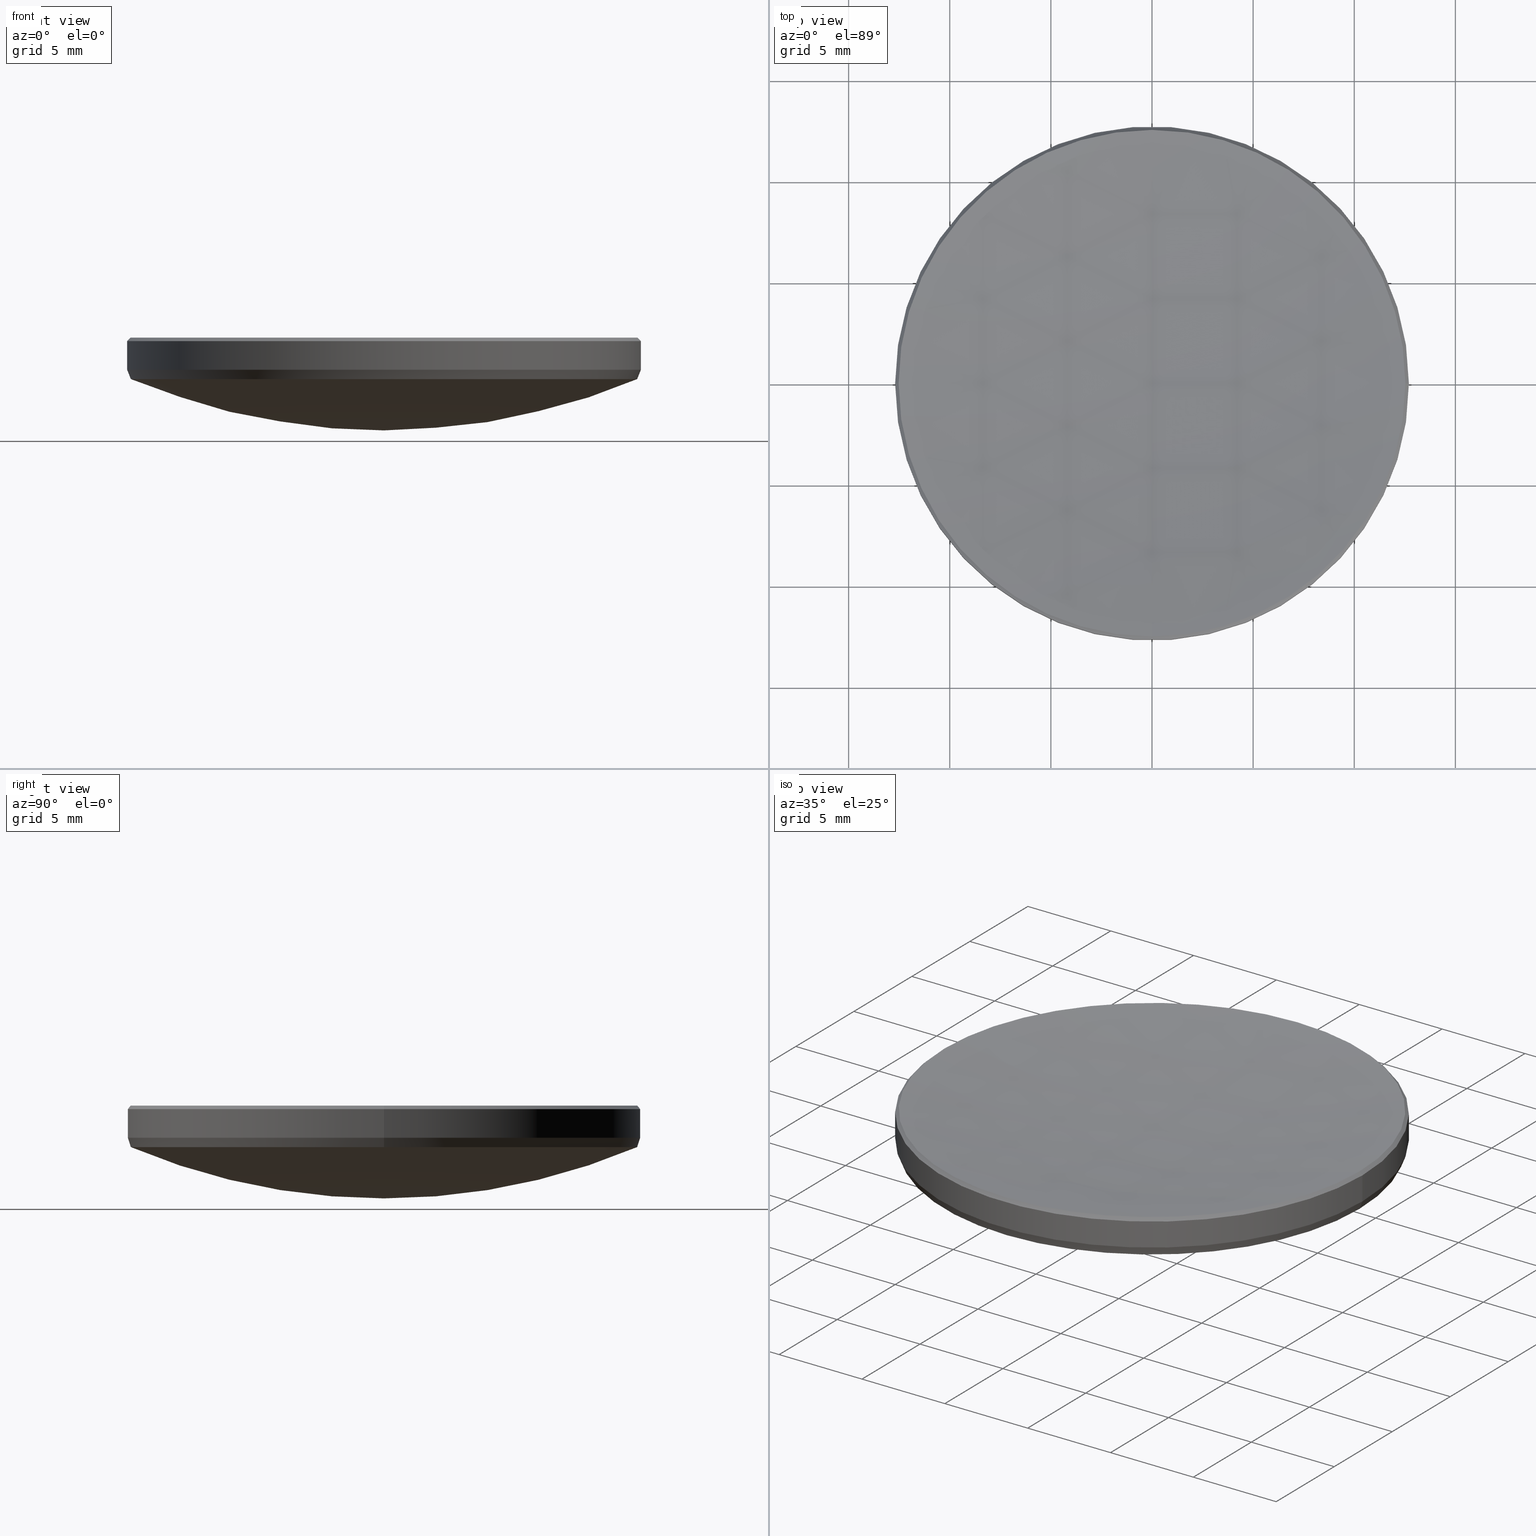
[diagram: canonical four-view strip — front | top / right | iso, engineering-drawing reading convention]
A machine part, canonical four-view strip (front | top / right | iso — engineering-drawing reading convention). The complete STEP part file that produces these views, byte-faithful:
ISO-10303-21;
HEADER;
FILE_DESCRIPTION (( 'STEP AP214' ),
    '1' );
FILE_NAME ('GLM1-025B-100-NIR.STEP',
    '2024-08-09T01:59:13',
    ( 'Windows User' ),
    ( 'P R C' ),
    'SwSTEP 2.0',
    'SolidWorks 2022',
    '' );
FILE_SCHEMA (( 'AUTOMOTIVE_DESIGN' ));
ENDSEC;

DATA;
#1 = AXIS2_PLACEMENT_3D ( 'NONE', #20, #72, #119 ) ;
#2 = ORIENTED_EDGE ( 'NONE', *, *, #304, .T. ) ;
#3 = FACE_OUTER_BOUND ( 'NONE', #309, .T. ) ;
#4 = AXIS2_PLACEMENT_3D ( 'NONE', #67, #183, #42 ) ;
#5 = EDGE_CURVE ( 'NONE', #200, #192, #256, .T. ) ;
#6 =( NAMED_UNIT ( * ) SI_UNIT ( $, .STERADIAN. ) SOLID_ANGLE_UNIT ( ) );
#7 = DIRECTION ( 'NONE',  ( 0.000000000000000000, 0.000000000000000000, -1.000000000000000000 ) ) ;
#8 = CARTESIAN_POINT ( 'NONE',  ( 0.000000000000000000, 0.000000000000000000, 33.52438991749025377 ) ) ;
#9 = AXIS2_PLACEMENT_3D ( 'NONE', #288, #7, #315 ) ;
#10 = FACE_OUTER_BOUND ( 'NONE', #329, .T. ) ;
#11 = AXIS2_PLACEMENT_3D ( 'NONE', #150, #84, #267 ) ;
#12 = DIRECTION ( 'NONE',  ( -1.000000000000000000, 0.000000000000000000, 0.000000000000000000 ) ) ;
#13 = EDGE_CURVE ( 'NONE', #141, #225, #146, .T. ) ;
#14 = PRODUCT ( 'GLM1-025B-100-NIR', 'GLM1-025B-100-NIR', '', ( #249 ) ) ;
#15 = CARTESIAN_POINT ( 'NONE',  ( 0.000000000000000000, 0.000000000000000000, 5.973125799162120941 ) ) ;
#16 = FACE_OUTER_BOUND ( 'NONE', #78, .T. ) ;
#17 = DIRECTION ( 'NONE',  ( 0.000000000000000000, 0.000000000000000000, -1.000000000000000000 ) ) ;
#18 = APPLICATION_CONTEXT ( 'automotive_design' ) ;
#19 = DIRECTION ( 'NONE',  ( -1.000000000000000000, 0.000000000000000000, 0.000000000000000000 ) ) ;
#20 = CARTESIAN_POINT ( 'NONE',  ( 0.000000000000000000, 0.000000000000000000, 0.000000000000000000 ) ) ;
#21 = DIRECTION ( 'NONE',  ( 1.000000000000000000, 0.000000000000000000, 0.000000000000000000 ) ) ;
#22 = CONICAL_SURFACE ( 'NONE', #132, 12.69999999999999929, 0.3791711273704264085 ) ;
#23 = STYLED_ITEM ( 'NONE', ( #173 ), #313 ) ;
#24 = EDGE_CURVE ( 'NONE', #330, #98, #56, .T. ) ;
#25 = VERTEX_POINT ( 'NONE', #260 ) ;
#26 = ORIENTED_EDGE ( 'NONE', *, *, #286, .F. ) ;
#27 = ORIENTED_EDGE ( 'NONE', *, *, #207, .F. ) ;
#28 = CIRCLE ( 'NONE', #197, 12.52687420083785419 ) ;
#29 = PRODUCT_DEFINITION_CONTEXT ( 'detailed design', #298, 'design' ) ;
#30 = ORIENTED_EDGE ( 'NONE', *, *, #275, .T. ) ;
#31 = ORIENTED_EDGE ( 'NONE', *, *, #24, .T. ) ;
#32 = DIRECTION ( 'NONE',  ( -1.000000000000000000, 0.000000000000000000, 0.000000000000000000 ) ) ;
#33 = ADVANCED_BREP_SHAPE_REPRESENTATION ( 'GLM1-025B-100-NIR', ( #313, #1 ), #209 ) ;
#34 = PRODUCT_DEFINITION ( 'δ֪', '', #151, #29 ) ;
#35 = PRODUCT_DEFINITION_SHAPE ( 'NONE', 'NONE',  #34 ) ;
#36 = FACE_OUTER_BOUND ( 'NONE', #147, .T. ) ;
#37 = DIRECTION ( 'NONE',  ( -1.224646799147353207E-16, -1.000000000000000000, 0.000000000000000000 ) ) ;
#38 = DIRECTION ( 'NONE',  ( -0.000000000000000000, -0.000000000000000000, 1.000000000000000000 ) ) ;
#39 = CARTESIAN_POINT ( 'NONE',  ( 0.000000000000000000, 0.000000000000000000, 4.382064373895533826 ) ) ;
#40 = DIRECTION ( 'NONE',  ( 0.000000000000000000, 0.000000000000000000, -1.000000000000000000 ) ) ;
#41 = CONICAL_SURFACE ( 'NONE', #220, 12.69999999999999929, 0.3791711273704264085 ) ;
#42 = DIRECTION ( 'NONE',  ( 1.000000000000000000, 0.000000000000000000, 0.000000000000000000 ) ) ;
#43 = CARTESIAN_POINT ( 'NONE',  ( 0.000000000000000000, 0.000000000000000000, 5.973125799162120941 ) ) ;
#44 = CARTESIAN_POINT ( 'NONE',  ( -12.69999999999999929, 0.000000000000000000, 10.00000000000000000 ) ) ;
#45 = DIRECTION ( 'NONE',  ( -0.000000000000000000, -0.000000000000000000, -1.000000000000000000 ) ) ;
#46 = DIRECTION ( 'NONE',  ( 1.000000000000000000, 0.000000000000000000, 0.000000000000000000 ) ) ;
#47 = DIRECTION ( 'NONE',  ( -0.000000000000000000, -0.000000000000000000, -1.000000000000000000 ) ) ;
#48 = AXIS2_PLACEMENT_3D ( 'NONE', #295, #292, #184 ) ;
#49 = ORIENTED_EDGE ( 'NONE', *, *, #293, .F. ) ;
#50 = SURFACE_SIDE_STYLE ('',( #114 ) ) ;
#51 = ORIENTED_EDGE ( 'NONE', *, *, #286, .T. ) ;
#52 = ADVANCED_FACE ( 'NONE', ( #104 ), #265, .T. ) ;
#53 = ORIENTED_EDGE ( 'NONE', *, *, #93, .T. ) ;
#54 = CIRCLE ( 'NONE', #235, 12.51660009051966682 ) ;
#55 = ORIENTED_EDGE ( 'NONE', *, *, #238, .T. ) ;
#56 = CIRCLE ( 'NONE', #296, 32.14000000000000057 ) ;
#57 = CARTESIAN_POINT ( 'NONE',  ( 0.000000000000000000, 0.000000000000000000, 33.52438991749025377 ) ) ;
#58 = ADVANCED_FACE ( 'NONE', ( #289 ), #22, .T. ) ;
#59 = CARTESIAN_POINT ( 'NONE',  ( 0.000000000000000000, 0.000000000000000000, 87.24335603604764344 ) ) ;
#60 = CARTESIAN_POINT ( 'NONE',  ( 12.69999999999999929, 1.555301434917138433E-15, 5.799999999999999822 ) ) ;
#61 = DIRECTION ( 'NONE',  ( -0.000000000000000000, -0.000000000000000000, -1.000000000000000000 ) ) ;
#62 = ADVANCED_FACE ( 'NONE', ( #36 ), #261, .T. ) ;
#63 = SURFACE_SIDE_STYLE ('',( #277 ) ) ;
#64 = CARTESIAN_POINT ( 'NONE',  ( 0.000000000000000000, 12.51660009051965972, 3.921783238787048820 ) ) ;
#65 = LINE ( 'NONE', #160, #170 ) ;
#66 = EDGE_CURVE ( 'NONE', #330, #200, #324, .T. ) ;
#67 = CARTESIAN_POINT ( 'NONE',  ( 0.000000000000000000, 0.000000000000000000, 5.799999999999999822 ) ) ;
#68 = CARTESIAN_POINT ( 'NONE',  ( 0.000000000000000000, 0.000000000000000000, 4.382064373895533826 ) ) ;
#69 = AXIS2_PLACEMENT_3D ( 'NONE', #236, #61, #12 ) ;
#70 = CARTESIAN_POINT ( 'NONE',  ( 12.69999999999999929, 1.555301434917138433E-15, 10.00000000000000000 ) ) ;
#71 = CARTESIAN_POINT ( 'NONE',  ( 12.69999999999999929, 1.555301434917138433E-15, 4.382064373895533826 ) ) ;
#72 = DIRECTION ( 'NONE',  ( 0.000000000000000000, 0.000000000000000000, 1.000000000000000000 ) ) ;
#73 = VERTEX_POINT ( 'NONE', #148 ) ;
#74 = ADVANCED_FACE ( 'NONE', ( #10 ), #82, .T. ) ;
#75 = ORIENTED_EDGE ( 'NONE', *, *, #24, .F. ) ;
#76 = ORIENTED_EDGE ( 'NONE', *, *, #66, .F. ) ;
#77 =( GEOMETRIC_REPRESENTATION_CONTEXT ( 3 ) GLOBAL_UNCERTAINTY_ASSIGNED_CONTEXT ( ( #187 ) ) GLOBAL_UNIT_ASSIGNED_CONTEXT ( ( #201, #264, #6 ) ) REPRESENTATION_CONTEXT ( 'NONE', 'WORKASPACE' ) );
#78 = EDGE_LOOP ( 'NONE', ( #122, #96, #281, #317, #252 ) ) ;
#79 = AXIS2_PLACEMENT_3D ( 'NONE', #95, #276, #273 ) ;
#80 = CIRCLE ( 'NONE', #294, 12.52687420083785419 ) ;
#81 = EDGE_LOOP ( 'NONE', ( #287, #262, #121, #30 ) ) ;
#82 = SPHERICAL_SURFACE ( 'NONE', #253, 32.14000000000000057 ) ;
#83 = CARTESIAN_POINT ( 'NONE',  ( 12.51660009051966860, 0.000000000000000000, 3.921783238787050596 ) ) ;
#84 = DIRECTION ( 'NONE',  ( -0.000000000000000000, -0.000000000000000000, 1.000000000000000000 ) ) ;
#85 = CARTESIAN_POINT ( 'NONE',  ( 0.000000000000000000, 0.000000000000000000, 33.52438991749025377 ) ) ;
#86 = CARTESIAN_POINT ( 'NONE',  ( 0.000000000000000000, 0.000000000000000000, 33.52438991749025377 ) ) ;
#87 = EDGE_CURVE ( 'NONE', #73, #25, #28, .T. ) ;
#88 = DIRECTION ( 'NONE',  ( 0.000000000000000000, 0.000000000000000000, -1.000000000000000000 ) ) ;
#89 = DIRECTION ( 'NONE',  ( -0.000000000000000000, -0.000000000000000000, 1.000000000000000000 ) ) ;
#90 = LINE ( 'NONE', #70, #94 ) ;
#91 = AXIS2_PLACEMENT_3D ( 'NONE', #57, #131, #233 ) ;
#92 = CARTESIAN_POINT ( 'NONE',  ( -1.534099639337759046E-15, -12.52687420083781511, 5.973125799162120941 ) ) ;
#93 = EDGE_CURVE ( 'NONE', #192, #98, #106, .T. ) ;
#94 = VECTOR ( 'NONE', #47, 1000.000000000000000 ) ;
#95 = CARTESIAN_POINT ( 'NONE',  ( 0.000000000000000000, 0.000000000000000000, 4.382064373895533826 ) ) ;
#96 = ORIENTED_EDGE ( 'NONE', *, *, #182, .T. ) ;
#97 = ORIENTED_EDGE ( 'NONE', *, *, #304, .F. ) ;
#98 = VERTEX_POINT ( 'NONE', #64 ) ;
#99 = ORIENTED_EDGE ( 'NONE', *, *, #331, .F. ) ;
#100 = CIRCLE ( 'NONE', #291, 82.22999999999998977 ) ;
#101 = ORIENTED_EDGE ( 'NONE', *, *, #13, .F. ) ;
#102 = AXIS2_PLACEMENT_3D ( 'NONE', #271, #299, #46 ) ;
#103 = DIRECTION ( 'NONE',  ( 0.000000000000000000, 1.000000000000000000, 0.000000000000000000 ) ) ;
#104 = FACE_OUTER_BOUND ( 'NONE', #194, .T. ) ;
#105 = DIRECTION ( 'NONE',  ( 0.000000000000000000, 1.000000000000000000, 0.000000000000000000 ) ) ;
#106 = CIRCLE ( 'NONE', #283, 12.51660009051966682 ) ;
#107 = DIRECTION ( 'NONE',  ( 0.000000000000000000, 1.000000000000000000, 0.000000000000000000 ) ) ;
#108 = AXIS2_PLACEMENT_3D ( 'NONE', #149, #109, #208 ) ;
#109 = DIRECTION ( 'NONE',  ( 0.000000000000000000, 0.000000000000000000, -1.000000000000000000 ) ) ;
#110 = DIRECTION ( 'NONE',  ( -0.000000000000000000, -0.000000000000000000, 1.000000000000000000 ) ) ;
#111 = ADVANCED_FACE ( 'NONE', ( #3 ), #128, .F. ) ;
#112 = CARTESIAN_POINT ( 'NONE',  ( 0.000000000000000000, 0.000000000000000000, 5.973125799162135152 ) ) ;
#113 = DIRECTION ( 'NONE',  ( 0.000000000000000000, 0.000000000000000000, -1.000000000000000000 ) ) ;
#114 = SURFACE_STYLE_FILL_AREA ( #323 ) ;
#115 = DIRECTION ( 'NONE',  ( -1.000000000000000000, 0.000000000000000000, 0.000000000000000000 ) ) ;
#116 = AXIS2_PLACEMENT_3D ( 'NONE', #180, #113, #135 ) ;
#117 = FACE_OUTER_BOUND ( 'NONE', #224, .T. ) ;
#118 = CIRCLE ( 'NONE', #4, 12.69999999999999929 ) ;
#119 = DIRECTION ( 'NONE',  ( 1.000000000000000000, 0.000000000000000000, 0.000000000000000000 ) ) ;
#120 = ORIENTED_EDGE ( 'NONE', *, *, #158, .T. ) ;
#121 = ORIENTED_EDGE ( 'NONE', *, *, #13, .T. ) ;
#122 = ORIENTED_EDGE ( 'NONE', *, *, #275, .F. ) ;
#123 = EDGE_LOOP ( 'NONE', ( #282, #101, #257, #332, #169 ) ) ;
#124 = ADVANCED_FACE ( 'NONE', ( #152 ), #153, .T. ) ;
#125 = ORIENTED_EDGE ( 'NONE', *, *, #207, .T. ) ;
#126 = VERTEX_POINT ( 'NONE', #83 ) ;
#127 = SURFACE_STYLE_USAGE ( .BOTH. , #63 ) ;
#128 = SPHERICAL_SURFACE ( 'NONE', #216, 82.22999999999998977 ) ;
#129 = ADVANCED_FACE ( 'NONE', ( #174 ), #204, .F. ) ;
#130 = CARTESIAN_POINT ( 'NONE',  ( 0.000000000000000000, 0.000000000000000000, 87.24335603604764344 ) ) ;
#131 = DIRECTION ( 'NONE',  ( -1.000000000000000000, 1.224646799147353207E-16, 0.000000000000000000 ) ) ;
#132 = AXIS2_PLACEMENT_3D ( 'NONE', #39, #316, #133 ) ;
#133 = DIRECTION ( 'NONE',  ( 1.000000000000000000, 0.000000000000000000, 0.000000000000000000 ) ) ;
#134 = AXIS2_PLACEMENT_3D ( 'NONE', #112, #88, #19 ) ;
#135 = DIRECTION ( 'NONE',  ( 1.000000000000000000, 0.000000000000000000, 0.000000000000000000 ) ) ;
#136 = FACE_OUTER_BOUND ( 'NONE', #198, .T. ) ;
#137 = DIRECTION ( 'NONE',  ( -0.000000000000000000, -0.000000000000000000, -1.000000000000000000 ) ) ;
#138 = CARTESIAN_POINT ( 'NONE',  ( 0.000000000000000000, 0.000000000000000000, 4.382064373895533826 ) ) ;
#139 = DIRECTION ( 'NONE',  ( -0.3701505973859326448, 4.533037442911630369E-17, 0.9289717623560131976 ) ) ;
#140 = VERTEX_POINT ( 'NONE', #60 ) ;
#141 = VERTEX_POINT ( 'NONE', #92 ) ;
#142 = ORIENTED_EDGE ( 'NONE', *, *, #145, .F. ) ;
#143 = VECTOR ( 'NONE', #325, 1000.000000000000000 ) ;
#144 = VERTEX_POINT ( 'NONE', #71 ) ;
#145 = EDGE_CURVE ( 'NONE', #144, #193, #168, .T. ) ;
#146 = CIRCLE ( 'NONE', #11, 12.52687420083785419 ) ;
#147 = EDGE_LOOP ( 'NONE', ( #97, #55, #51, #125 ) ) ;
#148 = CARTESIAN_POINT ( 'NONE',  ( 0.000000000000000000, 12.52687420083781511, 5.973125799162120941 ) ) ;
#149 = CARTESIAN_POINT ( 'NONE',  ( 0.000000000000000000, 0.000000000000000000, 3.921783238787050596 ) ) ;
#150 = CARTESIAN_POINT ( 'NONE',  ( 0.000000000000000000, 0.000000000000000000, 5.973125799162120941 ) ) ;
#151 = PRODUCT_DEFINITION_FORMATION_WITH_SPECIFIED_SOURCE ( '�κ�', '', #14, .NOT_KNOWN. ) ;
#152 = FACE_OUTER_BOUND ( 'NONE', #123, .T. ) ;
#153 = CONICAL_SURFACE ( 'NONE', #9, 12.52687420083785597, 0.7853981633974733700 ) ;
#154 = CARTESIAN_POINT ( 'NONE',  ( -12.69999999999999929, 0.000000000000000000, 4.382064373895533826 ) ) ;
#155 = CIRCLE ( 'NONE', #48, 82.22999999999998977 ) ;
#156 = CARTESIAN_POINT ( 'NONE',  ( -12.51660009051966860, 1.544071429311688688E-15, 3.921783238787050596 ) ) ;
#157 = DIRECTION ( 'NONE',  ( 1.000000000000000000, 0.000000000000000000, 0.000000000000000000 ) ) ;
#158 = EDGE_CURVE ( 'NONE', #25, #141, #205, .T. ) ;
#159 = UNCERTAINTY_MEASURE_WITH_UNIT (LENGTH_MEASURE( 1.000000000000000082E-05 ), #280, 'distance_accuracy_value', 'NONE');
#160 = CARTESIAN_POINT ( 'NONE',  ( 12.69999999999999929, 0.000000000000000000, 4.382064373895533826 ) ) ;
#161 =( NAMED_UNIT ( * ) PLANE_ANGLE_UNIT ( ) SI_UNIT ( $, .RADIAN. ) );
#162 = DIRECTION ( 'NONE',  ( 0.3701505973859326448, 0.000000000000000000, 0.9289717623560131976 ) ) ;
#163 = FILL_AREA_STYLE ('',( #303 ) ) ;
#164 = EDGE_CURVE ( 'NONE', #126, #200, #268, .T. ) ;
#165 = ORIENTED_EDGE ( 'NONE', *, *, #258, .T. ) ;
#166 = ORIENTED_EDGE ( 'NONE', *, *, #191, .T. ) ;
#167 = ORIENTED_EDGE ( 'NONE', *, *, #5, .T. ) ;
#168 = CIRCLE ( 'NONE', #79, 12.69999999999999929 ) ;
#169 = ORIENTED_EDGE ( 'NONE', *, *, #238, .F. ) ;
#170 = VECTOR ( 'NONE', #162, 1000.000000000000114 ) ;
#171 = ORIENTED_EDGE ( 'NONE', *, *, #145, .T. ) ;
#172 = DIRECTION ( 'NONE',  ( 1.000000000000000000, 0.000000000000000000, 0.000000000000000000 ) ) ;
#173 = PRESENTATION_STYLE_ASSIGNMENT (( #127 ) ) ;
#174 = FACE_OUTER_BOUND ( 'NONE', #81, .T. ) ;
#175 = DIRECTION ( 'NONE',  ( 0.000000000000000000, 1.000000000000000000, 0.000000000000000000 ) ) ;
#176 = DIRECTION ( 'NONE',  ( 0.000000000000000000, 0.000000000000000000, -1.000000000000000000 ) ) ;
#177 = ADVANCED_FACE ( 'NONE', ( #136 ), #217, .T. ) ;
#178 = PRESENTATION_LAYER_ASSIGNMENT (  '', '', ( #23 ) ) ;
#179 = DIRECTION ( 'NONE',  ( 1.000000000000000000, -0.000000000000000000, 0.000000000000000000 ) ) ;
#180 = CARTESIAN_POINT ( 'NONE',  ( 0.000000000000000000, 0.000000000000000000, 3.921783238787050596 ) ) ;
#181 = CONICAL_SURFACE ( 'NONE', #134, 12.52687420083785597, 0.7853981633974733700 ) ;
#182 = EDGE_CURVE ( 'NONE', #225, #140, #239, .T. ) ;
#183 = DIRECTION ( 'NONE',  ( 0.000000000000000000, 0.000000000000000000, -1.000000000000000000 ) ) ;
#184 = DIRECTION ( 'NONE',  ( 0.000000000000000000, 0.000000000000000000, -1.000000000000000000 ) ) ;
#185 =( NAMED_UNIT ( * ) PLANE_ANGLE_UNIT ( ) SI_UNIT ( $, .RADIAN. ) );
#186 = AXIS2_PLACEMENT_3D ( 'NONE', #322, #45, #270 ) ;
#187 = UNCERTAINTY_MEASURE_WITH_UNIT (LENGTH_MEASURE( 1.000000000000000082E-05 ), #201, 'distance_accuracy_value', 'NONE');
#188 = DIRECTION ( 'NONE',  ( -0.000000000000000000, -0.000000000000000000, 1.000000000000000000 ) ) ;
#189 = CLOSED_SHELL ( 'NONE', ( #211, #278, #129, #74, #177, #62, #52, #111, #58, #124 ) ) ;
#190 = CARTESIAN_POINT ( 'NONE',  ( 0.000000000000000000, 5.035135314694341706E-15, 5.013356036047661668 ) ) ;
#191 = EDGE_CURVE ( 'NONE', #223, #140, #118, .T. ) ;
#192 = VERTEX_POINT ( 'NONE', #156 ) ;
#193 = VERTEX_POINT ( 'NONE', #154 ) ;
#194 = EDGE_LOOP ( 'NONE', ( #76, #31, #284, #279 ) ) ;
#195 = PRESENTATION_LAYER_ASSIGNMENT (  '', '', ( #259 ) ) ;
#196 = ORIENTED_EDGE ( 'NONE', *, *, #5, .F. ) ;
#197 = AXIS2_PLACEMENT_3D ( 'NONE', #203, #38, #172 ) ;
#198 = EDGE_LOOP ( 'NONE', ( #166, #2, #171, #26 ) ) ;
#199 = AXIS2_PLACEMENT_3D ( 'NONE', #138, #188, #115 ) ;
#200 = VERTEX_POINT ( 'NONE', #242 ) ;
#201 =( LENGTH_UNIT ( ) NAMED_UNIT ( * ) SI_UNIT ( .MILLI., .METRE. ) );
#202 = CARTESIAN_POINT ( 'NONE',  ( 0.000000000000000000, 1.968007406229796560E-15, 1.384389917490250088 ) ) ;
#203 = CARTESIAN_POINT ( 'NONE',  ( 0.000000000000000000, 0.000000000000000000, 5.973125799162120941 ) ) ;
#204 = SPHERICAL_SURFACE ( 'NONE', #234, 82.22999999999998977 ) ;
#205 = CIRCLE ( 'NONE', #301, 12.52687420083785419 ) ;
#206 = DIRECTION ( 'NONE',  ( -1.000000000000000000, 0.000000000000000000, 0.000000000000000000 ) ) ;
#207 = EDGE_CURVE ( 'NONE', #193, #144, #230, .T. ) ;
#208 = DIRECTION ( 'NONE',  ( 1.000000000000000000, 0.000000000000000000, 0.000000000000000000 ) ) ;
#209 =( GEOMETRIC_REPRESENTATION_CONTEXT ( 3 ) GLOBAL_UNCERTAINTY_ASSIGNED_CONTEXT ( ( #255 ) ) GLOBAL_UNIT_ASSIGNED_CONTEXT ( ( #266, #185, #246 ) ) REPRESENTATION_CONTEXT ( 'NONE', 'WORKASPACE' ) );
#210 = DIRECTION ( 'NONE',  ( -0.000000000000000000, -0.000000000000000000, 1.000000000000000000 ) ) ;
#211 = ADVANCED_FACE ( 'NONE', ( #16 ), #181, .T. ) ;
#212 = DIRECTION ( 'NONE',  ( -0.7071067811865652253, 0.000000000000000000, -0.7071067811865298092 ) ) ;
#213 = CARTESIAN_POINT ( 'NONE',  ( -12.69999999999999929, 0.000000000000000000, 5.799999999999999822 ) ) ;
#214 = APPLICATION_PROTOCOL_DEFINITION ( 'draft international standard', 'automotive_design', 1998, #18 ) ;
#215 = LINE ( 'NONE', #302, #326 ) ;
#216 = AXIS2_PLACEMENT_3D ( 'NONE', #59, #312, #103 ) ;
#217 = CYLINDRICAL_SURFACE ( 'NONE', #186, 12.69999999999999929 ) ;
#218 = PRESENTATION_STYLE_ASSIGNMENT (( #300 ) ) ;
#219 = PRODUCT_RELATED_PRODUCT_CATEGORY ( 'part', '', ( #14 ) ) ;
#220 = AXIS2_PLACEMENT_3D ( 'NONE', #68, #210, #157 ) ;
#221 = ORIENTED_EDGE ( 'NONE', *, *, #93, .F. ) ;
#222 = FILL_AREA_STYLE_COLOUR ( '', #318 ) ;
#223 = VERTEX_POINT ( 'NONE', #213 ) ;
#224 = EDGE_LOOP ( 'NONE', ( #221, #306, #142, #307, #49 ) ) ;
#225 = VERTEX_POINT ( 'NONE', #319 ) ;
#226 =( GEOMETRIC_REPRESENTATION_CONTEXT ( 3 ) GLOBAL_UNCERTAINTY_ASSIGNED_CONTEXT ( ( #159 ) ) GLOBAL_UNIT_ASSIGNED_CONTEXT ( ( #280, #161, #241 ) ) REPRESENTATION_CONTEXT ( 'NONE', 'WORKASPACE' ) );
#227 = EDGE_LOOP ( 'NONE', ( #254, #196, #250, #165, #27 ) ) ;
#228 = CARTESIAN_POINT ( 'NONE',  ( 0.000000000000000000, 0.000000000000000000, 3.921783238787050596 ) ) ;
#229 = EDGE_CURVE ( 'NONE', #310, #73, #155, .T. ) ;
#230 = CIRCLE ( 'NONE', #199, 12.69999999999999929 ) ;
#231 = DIRECTION ( 'NONE',  ( -1.000000000000000000, 1.224646799147353207E-16, 0.000000000000000000 ) ) ;
#232 = DIRECTION ( 'NONE',  ( -1.000000000000000000, 0.000000000000000000, 0.000000000000000000 ) ) ;
#233 = DIRECTION ( 'NONE',  ( -1.224646799147353207E-16, -1.000000000000000000, 0.000000000000000000 ) ) ;
#234 = AXIS2_PLACEMENT_3D ( 'NONE', #130, #232, #105 ) ;
#235 = AXIS2_PLACEMENT_3D ( 'NONE', #240, #17, #321 ) ;
#236 = CARTESIAN_POINT ( 'NONE',  ( 0.000000000000000000, 0.000000000000000000, 10.00000000000000000 ) ) ;
#237 = DIRECTION ( 'NONE',  ( 1.000000000000000000, 0.000000000000000000, 0.000000000000000000 ) ) ;
#238 = EDGE_CURVE ( 'NONE', #140, #223, #285, .T. ) ;
#239 = LINE ( 'NONE', #245, #143 ) ;
#240 = CARTESIAN_POINT ( 'NONE',  ( 0.000000000000000000, 0.000000000000000000, 3.921783238787050596 ) ) ;
#241 =( NAMED_UNIT ( * ) SI_UNIT ( $, .STERADIAN. ) SOLID_ANGLE_UNIT ( ) );
#242 = CARTESIAN_POINT ( 'NONE',  ( -1.532841423706237562E-15, -12.51660009051965972, 3.921783238787048820 ) ) ;
#243 = MECHANICAL_DESIGN_GEOMETRIC_PRESENTATION_REPRESENTATION (  '', ( #23 ), #77 ) ;
#244 = EDGE_CURVE ( 'NONE', #25, #223, #215, .T. ) ;
#245 = CARTESIAN_POINT ( 'NONE',  ( 12.52687420083785597, 1.534099639337763779E-15, 5.973125799162135152 ) ) ;
#246 =( NAMED_UNIT ( * ) SI_UNIT ( $, .STERADIAN. ) SOLID_ANGLE_UNIT ( ) );
#247 = ORIENTED_EDGE ( 'NONE', *, *, #87, .T. ) ;
#248 = VECTOR ( 'NONE', #139, 1000.000000000000114 ) ;
#249 = PRODUCT_CONTEXT ( 'NONE', #18, 'mechanical' ) ;
#250 = ORIENTED_EDGE ( 'NONE', *, *, #164, .F. ) ;
#251 = AXIS2_PLACEMENT_3D ( 'NONE', #86, #206, #175 ) ;
#252 = ORIENTED_EDGE ( 'NONE', *, *, #87, .F. ) ;
#253 = AXIS2_PLACEMENT_3D ( 'NONE', #85, #32, #107 ) ;
#254 = ORIENTED_EDGE ( 'NONE', *, *, #263, .F. ) ;
#255 = UNCERTAINTY_MEASURE_WITH_UNIT (LENGTH_MEASURE( 1.000000000000000082E-05 ), #266, 'distance_accuracy_value', 'NONE');
#256 = CIRCLE ( 'NONE', #108, 12.51660009051966682 ) ;
#257 = ORIENTED_EDGE ( 'NONE', *, *, #158, .F. ) ;
#258 = EDGE_CURVE ( 'NONE', #126, #144, #65, .T. ) ;
#259 = STYLED_ITEM ( 'NONE', ( #218 ), #33 ) ;
#260 = CARTESIAN_POINT ( 'NONE',  ( -12.52687420083785419, 0.000000000000000000, 5.973125799162120941 ) ) ;
#261 = CYLINDRICAL_SURFACE ( 'NONE', #69, 12.69999999999999929 ) ;
#262 = ORIENTED_EDGE ( 'NONE', *, *, #331, .T. ) ;
#263 = EDGE_CURVE ( 'NONE', #192, #193, #320, .T. ) ;
#264 =( NAMED_UNIT ( * ) PLANE_ANGLE_UNIT ( ) SI_UNIT ( $, .RADIAN. ) );
#265 = SPHERICAL_SURFACE ( 'NONE', #251, 32.14000000000000057 ) ;
#266 =( LENGTH_UNIT ( ) NAMED_UNIT ( * ) SI_UNIT ( .MILLI., .METRE. ) );
#267 = DIRECTION ( 'NONE',  ( 1.000000000000000000, 0.000000000000000000, 0.000000000000000000 ) ) ;
#268 = CIRCLE ( 'NONE', #116, 12.51660009051966682 ) ;
#269 = VECTOR ( 'NONE', #137, 1000.000000000000000 ) ;
#270 = DIRECTION ( 'NONE',  ( -1.000000000000000000, 0.000000000000000000, 0.000000000000000000 ) ) ;
#271 = CARTESIAN_POINT ( 'NONE',  ( 0.000000000000000000, 0.000000000000000000, 5.799999999999999822 ) ) ;
#272 = LINE ( 'NONE', #44, #269 ) ;
#273 = DIRECTION ( 'NONE',  ( -1.000000000000000000, 0.000000000000000000, 0.000000000000000000 ) ) ;
#274 = SHAPE_DEFINITION_REPRESENTATION ( #35, #33 ) ;
#275 = EDGE_CURVE ( 'NONE', #225, #73, #80, .T. ) ;
#276 = DIRECTION ( 'NONE',  ( -0.000000000000000000, -0.000000000000000000, 1.000000000000000000 ) ) ;
#277 = SURFACE_STYLE_FILL_AREA ( #163 ) ;
#278 = ADVANCED_FACE ( 'NONE', ( #117 ), #41, .T. ) ;
#279 = ORIENTED_EDGE ( 'NONE', *, *, #164, .T. ) ;
#280 =( LENGTH_UNIT ( ) NAMED_UNIT ( * ) SI_UNIT ( .MILLI., .METRE. ) );
#281 = ORIENTED_EDGE ( 'NONE', *, *, #191, .F. ) ;
#282 = ORIENTED_EDGE ( 'NONE', *, *, #182, .F. ) ;
#283 = AXIS2_PLACEMENT_3D ( 'NONE', #228, #176, #290 ) ;
#284 = ORIENTED_EDGE ( 'NONE', *, *, #293, .T. ) ;
#285 = CIRCLE ( 'NONE', #102, 12.69999999999999929 ) ;
#286 = EDGE_CURVE ( 'NONE', #223, #193, #272, .T. ) ;
#287 = ORIENTED_EDGE ( 'NONE', *, *, #229, .F. ) ;
#288 = CARTESIAN_POINT ( 'NONE',  ( 0.000000000000000000, 0.000000000000000000, 5.973125799162135152 ) ) ;
#289 = FACE_OUTER_BOUND ( 'NONE', #227, .T. ) ;
#290 = DIRECTION ( 'NONE',  ( 1.000000000000000000, 0.000000000000000000, 0.000000000000000000 ) ) ;
#291 = AXIS2_PLACEMENT_3D ( 'NONE', #314, #231, #37 ) ;
#292 = DIRECTION ( 'NONE',  ( 1.000000000000000000, 0.000000000000000000, 0.000000000000000000 ) ) ;
#293 = EDGE_CURVE ( 'NONE', #98, #126, #54, .T. ) ;
#294 = AXIS2_PLACEMENT_3D ( 'NONE', #15, #110, #21 ) ;
#295 = CARTESIAN_POINT ( 'NONE',  ( 0.000000000000000000, 0.000000000000000000, 87.24335603604764344 ) ) ;
#296 = AXIS2_PLACEMENT_3D ( 'NONE', #8, #179, #40 ) ;
#297 = CARTESIAN_POINT ( 'NONE',  ( -12.69999999999999929, 1.555301434917138433E-15, 4.382064373895533826 ) ) ;
#298 = APPLICATION_CONTEXT ( 'automotive_design' ) ;
#299 = DIRECTION ( 'NONE',  ( 0.000000000000000000, 0.000000000000000000, -1.000000000000000000 ) ) ;
#300 = SURFACE_STYLE_USAGE ( .BOTH. , #50 ) ;
#301 = AXIS2_PLACEMENT_3D ( 'NONE', #43, #89, #237 ) ;
#302 = CARTESIAN_POINT ( 'NONE',  ( -12.52687420083785597, 0.000000000000000000, 5.973125799162135152 ) ) ;
#303 = FILL_AREA_STYLE_COLOUR ( '', #311 ) ;
#304 = EDGE_CURVE ( 'NONE', #140, #144, #90, .T. ) ;
#305 = ORIENTED_EDGE ( 'NONE', *, *, #66, .T. ) ;
#306 = ORIENTED_EDGE ( 'NONE', *, *, #263, .T. ) ;
#307 = ORIENTED_EDGE ( 'NONE', *, *, #258, .F. ) ;
#308 = MECHANICAL_DESIGN_GEOMETRIC_PRESENTATION_REPRESENTATION (  '', ( #259 ), #226 ) ;
#309 = EDGE_LOOP ( 'NONE', ( #99, #328, #247, #120 ) ) ;
#310 = VERTEX_POINT ( 'NONE', #190 ) ;
#311 = COLOUR_RGB ( '',1.000000000000000000, 1.000000000000000000, 1.000000000000000000 ) ;
#312 = DIRECTION ( 'NONE',  ( -1.000000000000000000, 0.000000000000000000, 0.000000000000000000 ) ) ;
#313 = MANIFOLD_SOLID_BREP ( '����1', #189 ) ;
#314 = CARTESIAN_POINT ( 'NONE',  ( 0.000000000000000000, 0.000000000000000000, 87.24335603604764344 ) ) ;
#315 = DIRECTION ( 'NONE',  ( -1.000000000000000000, 0.000000000000000000, 0.000000000000000000 ) ) ;
#316 = DIRECTION ( 'NONE',  ( -0.000000000000000000, -0.000000000000000000, 1.000000000000000000 ) ) ;
#317 = ORIENTED_EDGE ( 'NONE', *, *, #244, .F. ) ;
#318 = COLOUR_RGB ( '',1.000000000000000000, 1.000000000000000000, 1.000000000000000000 ) ;
#319 = CARTESIAN_POINT ( 'NONE',  ( 12.52687420083785419, 1.544700537127451106E-15, 5.973125799162120941 ) ) ;
#320 = LINE ( 'NONE', #297, #248 ) ;
#321 = DIRECTION ( 'NONE',  ( 1.000000000000000000, 0.000000000000000000, 0.000000000000000000 ) ) ;
#322 = CARTESIAN_POINT ( 'NONE',  ( 0.000000000000000000, 0.000000000000000000, 10.00000000000000000 ) ) ;
#323 = FILL_AREA_STYLE ('',( #222 ) ) ;
#324 = CIRCLE ( 'NONE', #91, 32.14000000000000057 ) ;
#325 = DIRECTION ( 'NONE',  ( 0.7071067811865652253, 8.659560562355149795E-17, -0.7071067811865298092 ) ) ;
#326 = VECTOR ( 'NONE', #212, 1000.000000000000000 ) ;
#327 = APPLICATION_PROTOCOL_DEFINITION ( 'draft international standard', 'automotive_design', 1998, #298 ) ;
#328 = ORIENTED_EDGE ( 'NONE', *, *, #229, .T. ) ;
#329 = EDGE_LOOP ( 'NONE', ( #75, #305, #167, #53 ) ) ;
#330 = VERTEX_POINT ( 'NONE', #202 ) ;
#331 = EDGE_CURVE ( 'NONE', #310, #141, #100, .T. ) ;
#332 = ORIENTED_EDGE ( 'NONE', *, *, #244, .T. ) ;
ENDSEC;
END-ISO-10303-21;
